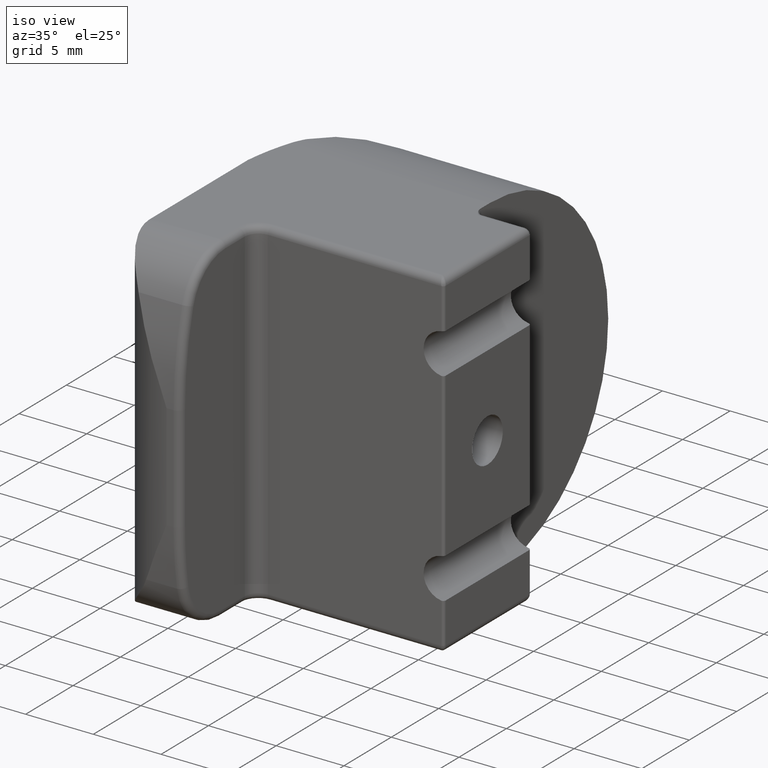
[diagram: clean part render]
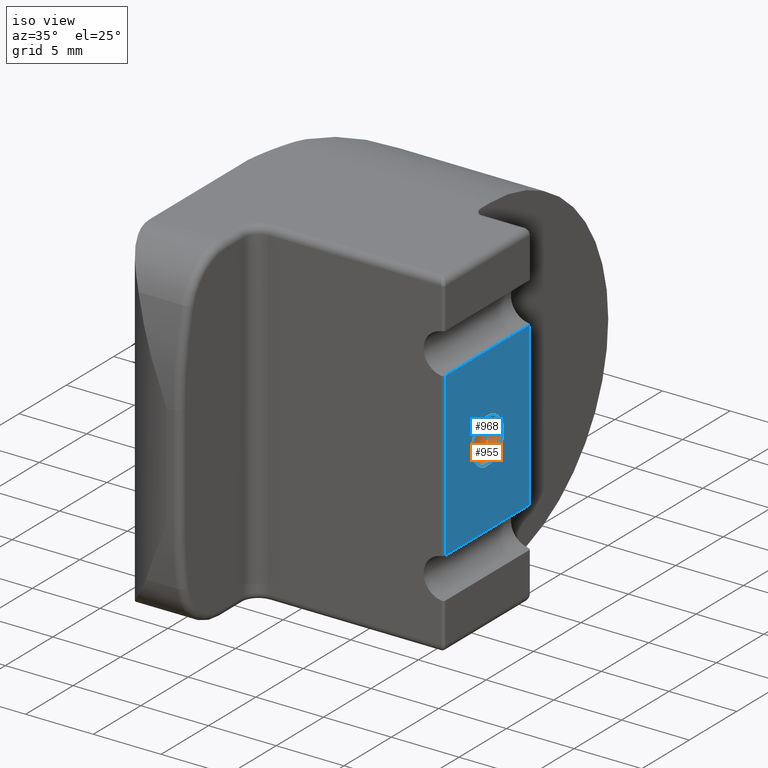
[diagram: same view with the hole feature highlighted: cylindrical wall and planar end face, labeled with their STEP entity ids]
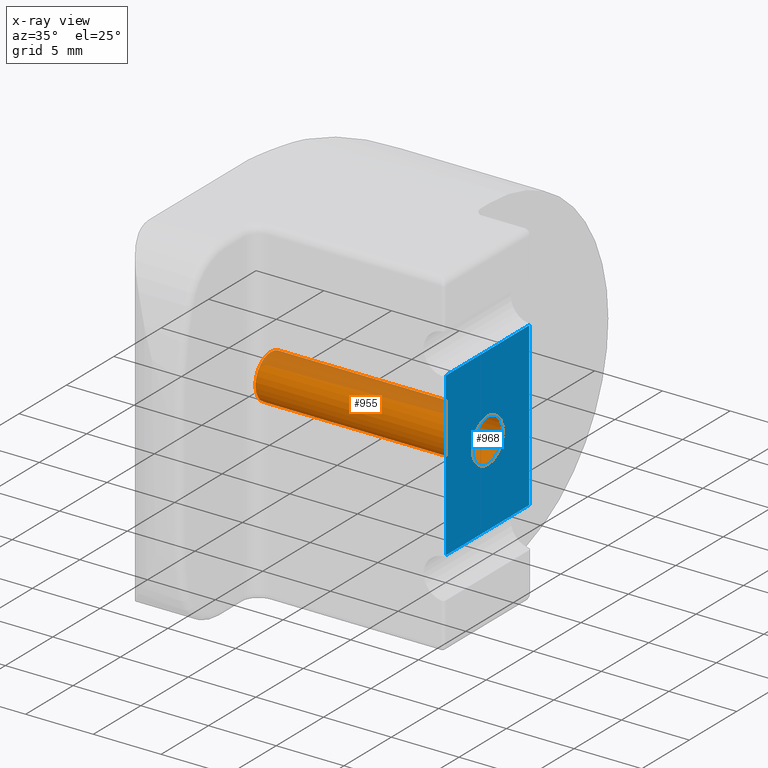
[diagram: x-ray of the same camera — body ghosted, the hole faces saturated]
A machine part, iso view. The highlighted faces form one hole feature of diameter 3.242 mm: the cylindrical wall (entity #955, orange) and its adjacent planar end face (entity #968, blue) — they share a circular edge in the B-rep.
The next image is the same camera in x-ray (body ghosted, the hole faces saturated) — the bore reads through the body.
Wall:
#96=LINE('',#1801,#165);
#165=VECTOR('',#1329,1.621);
#203=CYLINDRICAL_SURFACE('',#1081,1.621);
#251=FACE_OUTER_BOUND('',#309,.T.);
#309=EDGE_LOOP('',(#797,#798,#799,#800,#801,#802));
#389=CIRCLE('',#1079,1.621);
#390=CIRCLE('',#1080,1.621);
#391=CIRCLE('',#1082,1.621);
#392=CIRCLE('',#1083,1.621);
#466=VERTEX_POINT('',#1790);
#467=VERTEX_POINT('',#1791);
#469=VERTEX_POINT('',#1797);
#470=VERTEX_POINT('',#1798);
#589=EDGE_CURVE('',#466,#467,#389,.T.);
#591=EDGE_CURVE('',#467,#466,#390,.T.);
#592=EDGE_CURVE('',#469,#470,#391,.T.);
#593=EDGE_CURVE('',#470,#469,#392,.T.);
#594=EDGE_CURVE('',#470,#467,#96,.T.);
#797=ORIENTED_EDGE('',*,*,#592,.F.);
#798=ORIENTED_EDGE('',*,*,#593,.F.);
#799=ORIENTED_EDGE('',*,*,#594,.T.);
#800=ORIENTED_EDGE('',*,*,#589,.F.);
#801=ORIENTED_EDGE('',*,*,#591,.F.);
#802=ORIENTED_EDGE('',*,*,#594,.F.);
#955=ADVANCED_FACE('',(#251),#203,.F.);
#1079=AXIS2_PLACEMENT_3D('',#1792,#1318,#1319);
#1080=AXIS2_PLACEMENT_3D('',#1795,#1321,#1322);
#1081=AXIS2_PLACEMENT_3D('',#1796,#1323,#1324);
#1082=AXIS2_PLACEMENT_3D('',#1799,#1325,#1326);
#1083=AXIS2_PLACEMENT_3D('',#1800,#1327,#1328);
#1318=DIRECTION('center_axis',(1.,2.52323414687533E-16,0.));
#1319=DIRECTION('ref_axis',(0.,0.,-1.));
#1321=DIRECTION('center_axis',(1.,2.52323414687533E-16,0.));
#1322=DIRECTION('ref_axis',(0.,0.,-1.));
#1323=DIRECTION('center_axis',(1.,2.52323414687533E-16,0.));
#1324=DIRECTION('ref_axis',(0.,0.,-1.));
#1325=DIRECTION('center_axis',(-1.,-2.52323414687533E-16,0.));
#1326=DIRECTION('ref_axis',(0.,0.,-1.));
#1327=DIRECTION('center_axis',(-1.,-2.52323414687533E-16,0.));
#1328=DIRECTION('ref_axis',(0.,0.,-1.));
#1329=DIRECTION('',(-1.,-2.52323414687533E-16,0.));
#1790=CARTESIAN_POINT('',(-9.40000000000004,-2.37184009806279E-15,-1.621));
#1791=CARTESIAN_POINT('',(-9.40000000000004,-2.57035534420458E-15,1.621));
#1792=CARTESIAN_POINT('Origin',(-9.40000000000004,-2.37184009806279E-15,
0.));
#1795=CARTESIAN_POINT('Origin',(-9.40000000000004,-2.37184009806279E-15,
0.));
#1796=CARTESIAN_POINT('Origin',(-1.40000000000004,-3.53252780562529E-16,
0.));
#1797=CARTESIAN_POINT('',(6.59999999999996,1.66533453693773E-15,-1.621));
#1798=CARTESIAN_POINT('',(6.59999999999996,1.46681929079595E-15,1.621));
#1799=CARTESIAN_POINT('Origin',(6.59999999999996,1.66533453693773E-15,0.));
#1800=CARTESIAN_POINT('Origin',(6.59999999999996,1.66533453693773E-15,0.));
#1801=CARTESIAN_POINT('',(-1.40000000000004,-5.51768026704315E-16,1.621));
End face:
#15=FACE_BOUND('',#323,.T.);
#44=PLANE('',#1098);
#100=LINE('',#1821,#169);
#103=LINE('',#1894,#172);
#112=LINE('',#1923,#181);
#113=LINE('',#1925,#182);
#169=VECTOR('',#1339,10.);
#172=VECTOR('',#1346,10.);
#181=VECTOR('',#1373,10.);
#182=VECTOR('',#1376,10.);
#264=FACE_OUTER_BOUND('',#322,.T.);
#322=EDGE_LOOP('',(#868,#869,#870,#871));
#323=EDGE_LOOP('',(#872,#873));
#391=CIRCLE('',#1082,1.621);
#392=CIRCLE('',#1083,1.621);
#469=VERTEX_POINT('',#1797);
#470=VERTEX_POINT('',#1798);
#471=VERTEX_POINT('',#1808);
#473=VERTEX_POINT('',#1820);
#480=VERTEX_POINT('',#1882);
#481=VERTEX_POINT('',#1893);
#592=EDGE_CURVE('',#469,#470,#391,.T.);
#593=EDGE_CURVE('',#470,#469,#392,.T.);
#599=EDGE_CURVE('',#473,#471,#100,.T.);
#609=EDGE_CURVE('',#481,#480,#103,.T.);
#620=EDGE_CURVE('',#480,#473,#112,.T.);
#621=EDGE_CURVE('',#481,#471,#113,.T.);
#868=ORIENTED_EDGE('',*,*,#599,.T.);
#869=ORIENTED_EDGE('',*,*,#621,.F.);
#870=ORIENTED_EDGE('',*,*,#609,.T.);
#871=ORIENTED_EDGE('',*,*,#620,.T.);
#872=ORIENTED_EDGE('',*,*,#592,.T.);
#873=ORIENTED_EDGE('',*,*,#593,.T.);
#968=ADVANCED_FACE('',(#264,#15),#44,.T.);
#1082=AXIS2_PLACEMENT_3D('',#1799,#1325,#1326);
#1083=AXIS2_PLACEMENT_3D('',#1800,#1327,#1328);
#1098=AXIS2_PLACEMENT_3D('',#1924,#1374,#1375);
#1325=DIRECTION('center_axis',(-1.,-2.52323414687533E-16,0.));
#1326=DIRECTION('ref_axis',(0.,0.,-1.));
#1327=DIRECTION('center_axis',(-1.,-2.52323414687533E-16,0.));
#1328=DIRECTION('ref_axis',(0.,0.,-1.));
#1339=DIRECTION('',(3.04767104799062E-16,-1.,0.));
#1346=DIRECTION('',(-3.04767104799062E-16,1.,0.));
#1373=DIRECTION('',(0.,0.,1.));
#1374=DIRECTION('center_axis',(1.,2.52323414687533E-16,0.));
#1375=DIRECTION('ref_axis',(-2.52323414687533E-16,1.,0.));
#1376=DIRECTION('',(0.,0.,1.));
#1797=CARTESIAN_POINT('',(6.59999999999996,1.66533453693773E-15,-1.621));
#1798=CARTESIAN_POINT('',(6.59999999999996,1.46681929079595E-15,1.621));
#1799=CARTESIAN_POINT('Origin',(6.59999999999996,1.66533453693773E-15,0.));
#1800=CARTESIAN_POINT('Origin',(6.59999999999996,1.66533453693773E-15,0.));
#1808=CARTESIAN_POINT('',(6.59999999999996,-4.40000000000005,6.));
#1820=CARTESIAN_POINT('',(6.59999999999996,4.40000000000005,6.));
#1821=CARTESIAN_POINT('',(6.59999999999996,4.59999999999995,6.));
#1882=CARTESIAN_POINT('',(6.59999999999996,4.40000000000005,-6.));
#1893=CARTESIAN_POINT('',(6.59999999999996,-4.40000000000005,-6.));
#1894=CARTESIAN_POINT('',(6.59999999999996,4.59999999999995,-6.));
#1923=CARTESIAN_POINT('',(6.59999999999996,4.40000000000005,0.));
#1924=CARTESIAN_POINT('Origin',(6.59999999999996,-4.40000000000005,0.));
#1925=CARTESIAN_POINT('',(6.59999999999996,-4.40000000000005,0.));